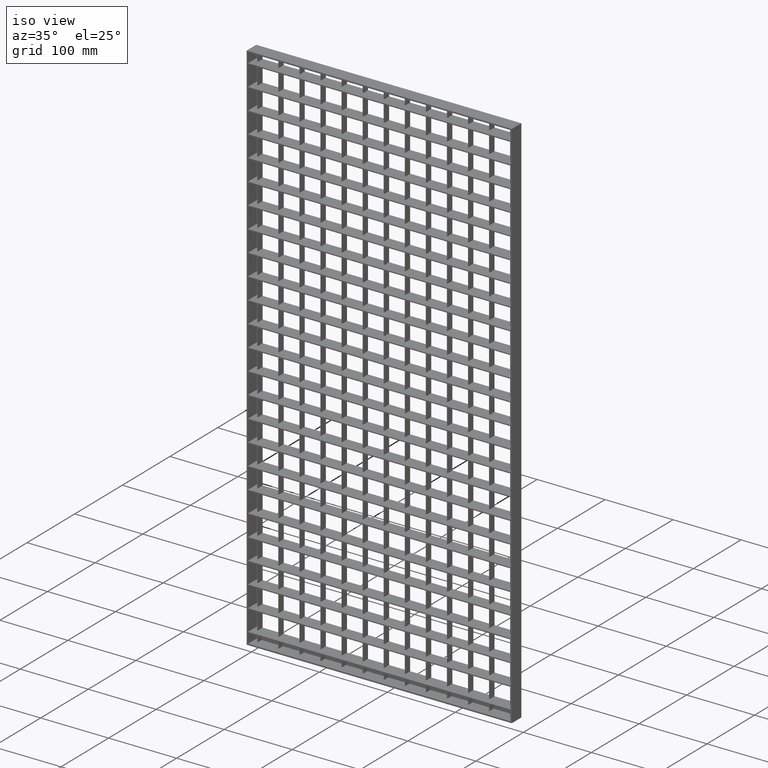
[diagram: clean part render]
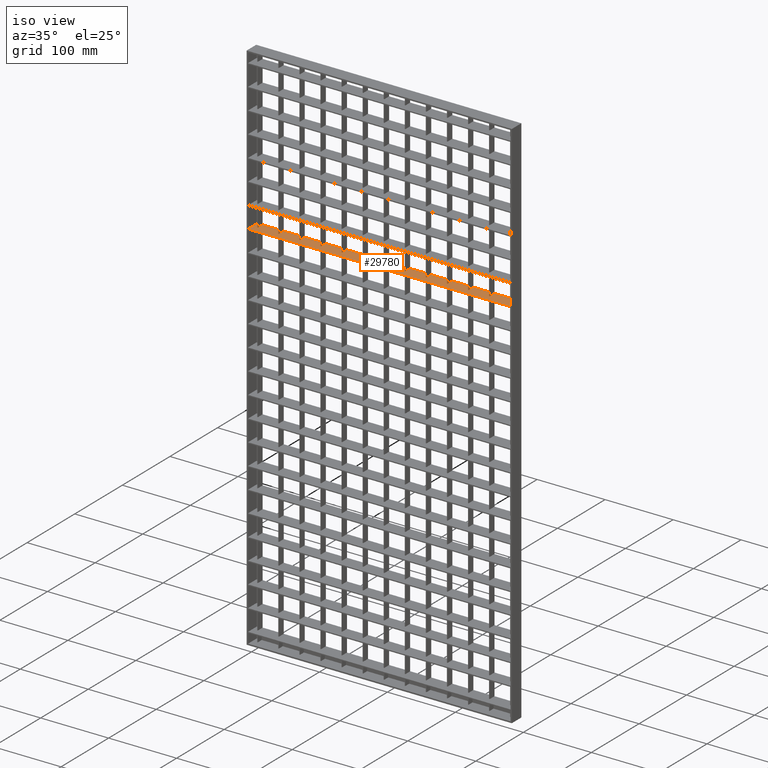
[diagram: same view with one face highlighted and labeled with its STEP entity id]
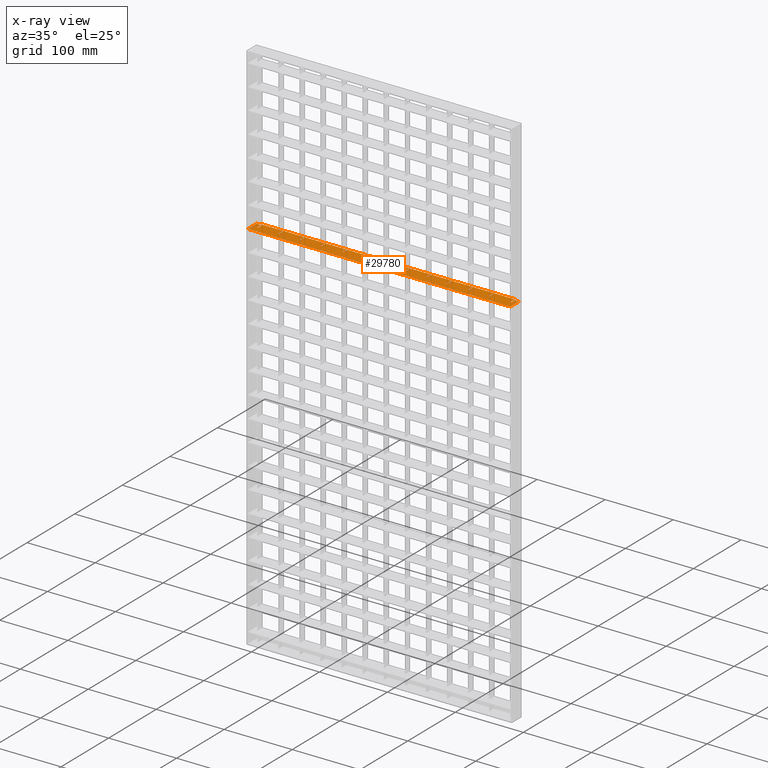
[diagram: x-ray of the same camera — body ghosted, the highlighted face saturated]
A machine part, iso view. The second image highlights one B-rep face of the part: STEP entity #29780.
The next image is the same camera in x-ray: the body ghosted, the highlighted face saturated — about 0% of this face is hidden behind the body in this view.
In plain terms, the highlighted planar face has unit normal (0, 0, 1).
Its self-contained STEP definition (entity closure, byte-faithful):
#153 = DIRECTION ( 'NONE',  ( 0.0000000000000000000, -1.000000000000000000, 0.0000000000000000000 ) ) ;
#383 = CARTESIAN_POINT ( 'NONE',  ( 408.0561711201315200, 10.00000000000012300, -236.7500000000002000 ) ) ;
#587 = LINE ( 'NONE', #14597, #41610 ) ;
#644 = VERTEX_POINT ( 'NONE', #10750 ) ;
#678 = LINE ( 'NONE', #29268, #5679 ) ;
#764 = CARTESIAN_POINT ( 'NONE',  ( 71.50000000000001400, 0.0000000000000000000, -236.7500000000002000 ) ) ;
#894 = PLANE ( 'NONE',  #15846 ) ;
#984 = LINE ( 'NONE', #51073, #9701 ) ;
#1024 = EDGE_CURVE ( 'NONE', #16260, #9839, #40531, .T. ) ;
#1094 = CARTESIAN_POINT ( 'NONE',  ( 133.5000000000000600, 10.00000000000004100, -236.7500000000002000 ) ) ;
#1233 = DIRECTION ( 'NONE',  ( 1.000000000000000000, 3.061616997868380700E-016, -0.0000000000000000000 ) ) ;
#1324 = CARTESIAN_POINT ( 'NONE',  ( 2.000000000000003600, 8.000000000000001800, -236.7500000000002300 ) ) ;
#1342 = VECTOR ( 'NONE', #42900, 1000.000000000000000 ) ;
#1387 = LINE ( 'NONE', #1899, #15063 ) ;
#1445 = EDGE_CURVE ( 'NONE', #45460, #2955, #1387, .T. ) ;
#1455 = VERTEX_POINT ( 'NONE', #29679 ) ;
#1702 = EDGE_CURVE ( 'NONE', #38486, #7622, #36097, .T. ) ;
#1705 = EDGE_CURVE ( 'NONE', #27461, #32814, #37329, .T. ) ;
#1881 = CARTESIAN_POINT ( 'NONE',  ( 408.0561711201315200, 10.00000000000012300, -236.7500000000002000 ) ) ;
#1896 = CARTESIAN_POINT ( 'NONE',  ( 319.5000000000001100, -9.999999999999877400, -236.7500000000002000 ) ) ;
#1899 = CARTESIAN_POINT ( 'NONE',  ( 132.5000000000000000, -9.999999999999877400, -236.7500000000002000 ) ) ;
#1995 = VERTEX_POINT ( 'NONE', #4050 ) ;
#2007 = ORIENTED_EDGE ( 'NONE', *, *, #5759, .F. ) ;
#2117 = VERTEX_POINT ( 'NONE', #16589 ) ;
#2120 = VERTEX_POINT ( 'NONE', #17108 ) ;
#2223 = CARTESIAN_POINT ( 'NONE',  ( 287.5000000000001100, -9.999999999999877400, -236.7500000000002000 ) ) ;
#2271 = EDGE_CURVE ( 'NONE', #26367, #24595, #46044, .T. ) ;
#2289 = VECTOR ( 'NONE', #47605, 1000.000000000000000 ) ;
#2398 = DIRECTION ( 'NONE',  ( -0.0000000000000000000, 1.000000000000000000, 0.0000000000000000000 ) ) ;
#2441 = LINE ( 'NONE', #22507, #9953 ) ;
#2645 = DIRECTION ( 'NONE',  ( -0.0000000000000000000, -1.000000000000000000, 0.0000000000000000000 ) ) ;
#2789 = EDGE_CURVE ( 'NONE', #32002, #39252, #5623, .T. ) ;
#2798 = DIRECTION ( 'NONE',  ( -0.0000000000000000000, 1.000000000000000000, 0.0000000000000000000 ) ) ;
#2816 = DIRECTION ( 'NONE',  ( -0.0000000000000000000, 1.000000000000000000, 0.0000000000000000000 ) ) ;
#2955 = VERTEX_POINT ( 'NONE', #13091 ) ;
#3120 = VECTOR ( 'NONE', #153, 1000.000000000000000 ) ;
#3135 = EDGE_CURVE ( 'NONE', #7062, #1995, #14317, .T. ) ;
#3136 = DIRECTION ( 'NONE',  ( 0.0000000000000000000, -1.000000000000000000, 0.0000000000000000000 ) ) ;
#3150 = VECTOR ( 'NONE', #14009, 1000.000000000000000 ) ;
#3152 = CARTESIAN_POINT ( 'NONE',  ( 225.5000000000001400, -9.999999999999877400, -236.7500000000002000 ) ) ;
#3263 = CARTESIAN_POINT ( 'NONE',  ( 8.500000000000007100, 8.365702838930992200E-016, -236.7500000000002000 ) ) ;
#3326 = VECTOR ( 'NONE', #1233, 1000.000000000000000 ) ;
#3390 = VECTOR ( 'NONE', #26713, 1000.000000000000000 ) ;
#3552 = DIRECTION ( 'NONE',  ( -0.0000000000000000000, 1.000000000000000000, 0.0000000000000000000 ) ) ;
#3612 = EDGE_CURVE ( 'NONE', #4499, #22836, #40922, .T. ) ;
#3810 = CARTESIAN_POINT ( 'NONE',  ( 39.49999999999997900, 1.653965597401023900E-015, -236.7500000000002000 ) ) ;
#3934 = VERTEX_POINT ( 'NONE', #41701 ) ;
#4001 = ORIENTED_EDGE ( 'NONE', *, *, #45790, .T. ) ;
#4015 = DIRECTION ( 'NONE',  ( -0.0000000000000000000, 1.000000000000000000, 0.0000000000000000000 ) ) ;
#4050 = CARTESIAN_POINT ( 'NONE',  ( 194.5000000000000000, 2.271495212987144100E-015, -236.7500000000002000 ) ) ;
#4059 = CARTESIAN_POINT ( 'NONE',  ( 164.5000000000000000, 10.00000000000004800, -236.7500000000002000 ) ) ;
#4177 = EDGE_CURVE ( 'NONE', #25424, #2120, #45857, .T. ) ;
#4185 = ORIENTED_EDGE ( 'NONE', *, *, #31992, .T. ) ;
#4235 = ORIENTED_EDGE ( 'NONE', *, *, #13561, .F. ) ;
#4347 = CARTESIAN_POINT ( 'NONE',  ( 102.4999999999999900, -9.999999999999877400, -236.7500000000002000 ) ) ;
#4382 = EDGE_CURVE ( 'NONE', #50762, #32002, #28387, .T. ) ;
#4499 = VERTEX_POINT ( 'NONE', #45133 ) ;
#4624 = VECTOR ( 'NONE', #21027, 1000.000000000000000 ) ;
#4646 = ORIENTED_EDGE ( 'NONE', *, *, #10388, .F. ) ;
#4854 = CARTESIAN_POINT ( 'NONE',  ( 225.5000000000001400, 10.00000000000006800, -236.7500000000002000 ) ) ;
#4873 = DIRECTION ( 'NONE',  ( -1.000000000000000000, -3.061616997868383100E-016, 0.0000000000000000000 ) ) ;
#4891 = ORIENTED_EDGE ( 'NONE', *, *, #39717, .T. ) ;
#5533 = CARTESIAN_POINT ( 'NONE',  ( 163.5000000000000000, -9.999999999999877400, -236.7500000000002000 ) ) ;
#5623 = LINE ( 'NONE', #3152, #6876 ) ;
#5634 = CARTESIAN_POINT ( 'NONE',  ( 40.50000000000003600, 10.00000000000001100, -236.7500000000002000 ) ) ;
#5679 = VECTOR ( 'NONE', #21338, 1000.000000000000000 ) ;
#5759 = EDGE_CURVE ( 'NONE', #23967, #33287, #25197, .T. ) ;
#5898 = VECTOR ( 'NONE', #9505, 1000.000000000000000 ) ;
#5924 = DIRECTION ( 'NONE',  ( 0.0000000000000000000, -1.000000000000000000, 0.0000000000000000000 ) ) ;
#5997 = EDGE_CURVE ( 'NONE', #44871, #7948, #50012, .T. ) ;
#6093 = VERTEX_POINT ( 'NONE', #11440 ) ;
#6096 = CARTESIAN_POINT ( 'NONE',  ( 226.5000000000001400, 7.001226303889211900E-016, -236.7500000000002300 ) ) ;
#6131 = CARTESIAN_POINT ( 'NONE',  ( 226.5000000000001400, -9.999999999999877400, -236.7500000000002000 ) ) ;
#6325 = CARTESIAN_POINT ( 'NONE',  ( 350.5000000000001700, 7.001226303889211900E-016, -236.7500000000002300 ) ) ;
#6464 = VERTEX_POINT ( 'NONE', #45252 ) ;
#6559 = ORIENTED_EDGE ( 'NONE', *, *, #26084, .F. ) ;
#6620 = EDGE_CURVE ( 'NONE', #33287, #1455, #48050, .T. ) ;
#6697 = ORIENTED_EDGE ( 'NONE', *, *, #34419, .T. ) ;
#6698 = VERTEX_POINT ( 'NONE', #43934 ) ;
#6764 = EDGE_CURVE ( 'NONE', #7062, #24434, #30049, .T. ) ;
#6876 = VECTOR ( 'NONE', #2816, 1000.000000000000000 ) ;
#6916 = EDGE_CURVE ( 'NONE', #23101, #41106, #41822, .T. ) ;
#7062 = VERTEX_POINT ( 'NONE', #30367 ) ;
#7196 = VECTOR ( 'NONE', #33804, 1000.000000000000000 ) ;
#7207 = ORIENTED_EDGE ( 'NONE', *, *, #9274, .T. ) ;
#7297 = CARTESIAN_POINT ( 'NONE',  ( 408.0561711201315200, 10.00000000000012300, -236.7500000000002000 ) ) ;
#7377 = VECTOR ( 'NONE', #51251, 1000.000000000000000 ) ;
#7422 = EDGE_CURVE ( 'NONE', #18587, #16260, #8835, .T. ) ;
#7563 = CARTESIAN_POINT ( 'NONE',  ( 382.0000000000002800, 10.00000000000000400, -236.7500000000004500 ) ) ;
#7590 = VERTEX_POINT ( 'NONE', #35074 ) ;
#7593 = EDGE_CURVE ( 'NONE', #39877, #43399, #22542, .T. ) ;
#7622 = VERTEX_POINT ( 'NONE', #3810 ) ;
#7631 = VECTOR ( 'NONE', #29333, 1000.000000000000000 ) ;
#7796 = DIRECTION ( 'NONE',  ( -0.0000000000000000000, 1.000000000000000000, 0.0000000000000000000 ) ) ;
#7852 = CARTESIAN_POINT ( 'NONE',  ( 408.0561711201315200, -1.561251128379126400E-014, -236.7500000000002000 ) ) ;
#7872 = EDGE_CURVE ( 'NONE', #48052, #27461, #41037, .T. ) ;
#7885 = VECTOR ( 'NONE', #2798, 1000.000000000000000 ) ;
#7897 = DIRECTION ( 'NONE',  ( 0.0000000000000000000, -1.000000000000000000, 0.0000000000000000000 ) ) ;
#7911 = CARTESIAN_POINT ( 'NONE',  ( 40.50000000000003600, -9.999999999999877400, -236.7500000000002000 ) ) ;
#7948 = VERTEX_POINT ( 'NONE', #21043 ) ;
#8025 = VERTEX_POINT ( 'NONE', #3263 ) ;
#8050 = EDGE_CURVE ( 'NONE', #22836, #48052, #31733, .T. ) ;
#8181 = EDGE_CURVE ( 'NONE', #32814, #25754, #19299, .T. ) ;
#8488 = VECTOR ( 'NONE', #26277, 1000.000000000000000 ) ;
#8835 = LINE ( 'NONE', #33250, #41770 ) ;
#9098 = CARTESIAN_POINT ( 'NONE',  ( 349.5000000000001700, 1.006284330175759700E-015, -236.7500000000002300 ) ) ;
#9256 = CARTESIAN_POINT ( 'NONE',  ( 408.0561711201315200, -9.999999999999877400, -236.7500000000002000 ) ) ;
#9274 = EDGE_CURVE ( 'NONE', #37556, #44171, #2441, .T. ) ;
#9505 = DIRECTION ( 'NONE',  ( -1.000000000000000000, 0.0000000000000000000, 0.0000000000000000000 ) ) ;
#9619 = VECTOR ( 'NONE', #31197, 1000.000000000000000 ) ;
#9701 = VECTOR ( 'NONE', #11521, 1000.000000000000000 ) ;
#9727 = CARTESIAN_POINT ( 'NONE',  ( 408.0561711201315200, 9.540979117872439000E-014, -236.7500000000002000 ) ) ;
#9758 = ORIENTED_EDGE ( 'NONE', *, *, #45426, .T. ) ;
#9768 = CARTESIAN_POINT ( 'NONE',  ( 8.500000000000007100, -9.999999999999877400, -236.7500000000002000 ) ) ;
#9839 = VERTEX_POINT ( 'NONE', #44578 ) ;
#9928 = CARTESIAN_POINT ( 'NONE',  ( 257.5000000000001100, 10.00000000000000200, -236.7500000000003400 ) ) ;
#9953 = VECTOR ( 'NONE', #49912, 1000.000000000000000 ) ;
#10112 = DIRECTION ( 'NONE',  ( -1.000000000000000000, 0.0000000000000000000, 0.0000000000000000000 ) ) ;
#10267 = CARTESIAN_POINT ( 'NONE',  ( 382.0000000000000600, 8.000000000000001800, -236.7500000000004500 ) ) ;
#10352 = CARTESIAN_POINT ( 'NONE',  ( 2.000000000000003600, -10.00000000000000000, -236.7500000000002300 ) ) ;
#10388 = EDGE_CURVE ( 'NONE', #43137, #23967, #43938, .T. ) ;
#10555 = LINE ( 'NONE', #7911, #40915 ) ;
#10750 = CARTESIAN_POINT ( 'NONE',  ( 287.5000000000001100, 1.006284330175759700E-015, -236.7500000000002300 ) ) ;
#10842 = EDGE_CURVE ( 'NONE', #40280, #30318, #22831, .T. ) ;
#10983 = EDGE_CURVE ( 'NONE', #23101, #22871, #984, .T. ) ;
#11220 = ORIENTED_EDGE ( 'NONE', *, *, #3612, .T. ) ;
#11251 = ORIENTED_EDGE ( 'NONE', *, *, #15636, .T. ) ;
#11301 = ORIENTED_EDGE ( 'NONE', *, *, #8181, .T. ) ;
#11345 = DIRECTION ( 'NONE',  ( -1.000000000000000000, 3.061616997868380700E-016, 0.0000000000000000000 ) ) ;
#11440 = CARTESIAN_POINT ( 'NONE',  ( 256.5000000000001100, 10.00000000000007600, -236.7500000000002000 ) ) ;
#11516 = CARTESIAN_POINT ( 'NONE',  ( 382.0000000000000600, 8.000000000000001800, -236.7500000000002300 ) ) ;
#11521 = DIRECTION ( 'NONE',  ( 0.0000000000000000000, -1.000000000000000000, 0.0000000000000000000 ) ) ;
#11590 = ORIENTED_EDGE ( 'NONE', *, *, #38516, .T. ) ;
#11845 = LINE ( 'NONE', #47780, #3120 ) ;
#11875 = LINE ( 'NONE', #50130, #30466 ) ;
#12211 = LINE ( 'NONE', #22819, #44508 ) ;
#12290 = VECTOR ( 'NONE', #47924, 1000.000000000000000 ) ;
#12385 = VECTOR ( 'NONE', #16217, 1000.000000000000000 ) ;
#12505 = ORIENTED_EDGE ( 'NONE', *, *, #21587, .T. ) ;
#12618 = ORIENTED_EDGE ( 'NONE', *, *, #7422, .T. ) ;
#12631 = CARTESIAN_POINT ( 'NONE',  ( 163.5000000000000000, 1.454099899479207200E-015, -236.7500000000002000 ) ) ;
#12713 = VERTEX_POINT ( 'NONE', #47564 ) ;
#12766 = EDGE_CURVE ( 'NONE', #2955, #26367, #678, .T. ) ;
#12878 = EDGE_CURVE ( 'NONE', #14347, #644, #47300, .T. ) ;
#12879 = LINE ( 'NONE', #9768, #47695 ) ;
#12965 = VECTOR ( 'NONE', #27135, 1000.000000000000000 ) ;
#13091 = CARTESIAN_POINT ( 'NONE',  ( 132.4999999999999400, 6.367045859712454800E-016, -236.7500000000002000 ) ) ;
#13561 = EDGE_CURVE ( 'NONE', #41043, #33529, #587, .T. ) ;
#13624 = LINE ( 'NONE', #10352, #40912 ) ;
#13814 = CARTESIAN_POINT ( 'NONE',  ( 39.50000000000000700, 10.00000000000000200, -236.7500000000002300 ) ) ;
#13884 = VECTOR ( 'NONE', #3136, 1000.000000000000000 ) ;
#14009 = DIRECTION ( 'NONE',  ( 0.0000000000000000000, -1.000000000000000000, 0.0000000000000000000 ) ) ;
#14317 = LINE ( 'NONE', #45887, #34156 ) ;
#14347 = VERTEX_POINT ( 'NONE', #31672 ) ;
#14597 = CARTESIAN_POINT ( 'NONE',  ( 71.50000000000001400, -9.999999999999877400, -236.7500000000002000 ) ) ;
#14838 = ORIENTED_EDGE ( 'NONE', *, *, #1705, .T. ) ;
#15063 = VECTOR ( 'NONE', #38692, 1000.000000000000000 ) ;
#15098 = ORIENTED_EDGE ( 'NONE', *, *, #18117, .F. ) ;
#15189 = LINE ( 'NONE', #18351, #16434 ) ;
#15367 = VECTOR ( 'NONE', #25724, 1000.000000000000000 ) ;
#15446 = DIRECTION ( 'NONE',  ( -0.0000000000000000000, -1.000000000000000000, 0.0000000000000000000 ) ) ;
#15611 = CARTESIAN_POINT ( 'NONE',  ( 225.5000000000001400, 1.006284330175759700E-015, -236.7500000000002300 ) ) ;
#15636 = EDGE_CURVE ( 'NONE', #12713, #50762, #29607, .T. ) ;
#15650 = VECTOR ( 'NONE', #23641, 1000.000000000000000 ) ;
#15662 = ORIENTED_EDGE ( 'NONE', *, *, #12766, .F. ) ;
#15676 = LINE ( 'NONE', #49706, #33678 ) ;
#15838 = LINE ( 'NONE', #18228, #3390 ) ;
#15846 = AXIS2_PLACEMENT_3D ( 'NONE', #9256, #25236, #41152 ) ;
#15881 = LINE ( 'NONE', #25871, #7196 ) ;
#16217 = DIRECTION ( 'NONE',  ( -1.000000000000000000, -3.061616997868383100E-016, 0.0000000000000000000 ) ) ;
#16260 = VERTEX_POINT ( 'NONE', #9928 ) ;
#16434 = VECTOR ( 'NONE', #26157, 1000.000000000000000 ) ;
#16589 = CARTESIAN_POINT ( 'NONE',  ( 9.500000000000008900, 10.00000000000000200, -236.7500000000002000 ) ) ;
#17108 = CARTESIAN_POINT ( 'NONE',  ( 381.5000000000000600, 10.00000000000000200, -236.7500000000003400 ) ) ;
#17304 = LINE ( 'NONE', #50927, #12965 ) ;
#17375 = VERTEX_POINT ( 'NONE', #9098 ) ;
#17811 = EDGE_CURVE ( 'NONE', #21538, #25424, #41556, .T. ) ;
#18117 = EDGE_CURVE ( 'NONE', #23432, #7590, #11875, .T. ) ;
#18228 = CARTESIAN_POINT ( 'NONE',  ( 408.0561711201315200, -4.510281037539698400E-014, -236.7500000000002000 ) ) ;
#18242 = VECTOR ( 'NONE', #27607, 1000.000000000000000 ) ;
#18351 = CARTESIAN_POINT ( 'NONE',  ( 408.0561711201315200, 10.00000000000012300, -236.7500000000002000 ) ) ;
#18402 = DIRECTION ( 'NONE',  ( -1.000000000000000000, -3.061616997868383100E-016, 0.0000000000000000000 ) ) ;
#18405 = DIRECTION ( 'NONE',  ( -0.0000000000000000000, 1.000000000000000000, 0.0000000000000000000 ) ) ;
#18587 = VERTEX_POINT ( 'NONE', #33103 ) ;
#18733 = LINE ( 'NONE', #20091, #31121 ) ;
#18834 = CARTESIAN_POINT ( 'NONE',  ( 164.5000000000000000, 0.0000000000000000000, -236.7500000000002000 ) ) ;
#19299 = LINE ( 'NONE', #51564, #24310 ) ;
#19326 = CARTESIAN_POINT ( 'NONE',  ( 9.500000000000008900, -9.999999999999877400, -236.7500000000002000 ) ) ;
#19602 = EDGE_CURVE ( 'NONE', #25885, #33003, #29648, .T. ) ;
#19692 = EDGE_CURVE ( 'NONE', #28121, #2117, #35203, .T. ) ;
#19697 = ORIENTED_EDGE ( 'NONE', *, *, #8050, .T. ) ;
#19704 = CARTESIAN_POINT ( 'NONE',  ( 101.4999999999999900, -9.999999999999877400, -236.7500000000002000 ) ) ;
#20091 = CARTESIAN_POINT ( 'NONE',  ( 380.5000000000000600, -9.999999999999877400, -236.7500000000002000 ) ) ;
#20113 = ORIENTED_EDGE ( 'NONE', *, *, #43805, .F. ) ;
#20154 = LINE ( 'NONE', #40814, #3326 ) ;
#20328 = CARTESIAN_POINT ( 'NONE',  ( 408.0561711201315200, 10.00000000000012300, -236.7500000000002000 ) ) ;
#20390 = VECTOR ( 'NONE', #35050, 1000.000000000000000 ) ;
#20681 = CARTESIAN_POINT ( 'NONE',  ( 408.0561711201315200, -2.602085213965210600E-014, -236.7500000000002000 ) ) ;
#21027 = DIRECTION ( 'NONE',  ( 1.000000000000000000, 3.061616997868380700E-016, -0.0000000000000000000 ) ) ;
#21043 = CARTESIAN_POINT ( 'NONE',  ( 7.999999999999996400, 10.00000000000000200, -236.7500000000002300 ) ) ;
#21286 = ORIENTED_EDGE ( 'NONE', *, *, #25849, .T. ) ;
#21338 = DIRECTION ( 'NONE',  ( 1.000000000000000000, 3.061616997868380700E-016, -0.0000000000000000000 ) ) ;
#21538 = VERTEX_POINT ( 'NONE', #10267 ) ;
#21587 = EDGE_CURVE ( 'NONE', #6464, #24595, #28860, .T. ) ;
#21609 = EDGE_CURVE ( 'NONE', #9839, #31344, #15838, .T. ) ;
#21688 = ORIENTED_EDGE ( 'NONE', *, *, #21609, .T. ) ;
#21806 = EDGE_CURVE ( 'NONE', #31344, #6093, #30710, .T. ) ;
#22001 = CARTESIAN_POINT ( 'NONE',  ( 288.5000000000001100, 10.00000000000000200, -236.7500000000003400 ) ) ;
#22055 = EDGE_CURVE ( 'NONE', #8025, #28121, #30657, .T. ) ;
#22103 = ORIENTED_EDGE ( 'NONE', *, *, #36378, .F. ) ;
#22240 = VECTOR ( 'NONE', #47289, 1000.000000000000000 ) ;
#22507 = CARTESIAN_POINT ( 'NONE',  ( 408.0561711201315200, -6.938893903907228400E-015, -236.7500000000002000 ) ) ;
#22518 = CARTESIAN_POINT ( 'NONE',  ( 380.5000000000000600, 10.00000000000011500, -236.7500000000002000 ) ) ;
#22542 = LINE ( 'NONE', #47261, #1342 ) ;
#22632 = CARTESIAN_POINT ( 'NONE',  ( 9.500000000000008900, 0.0000000000000000000, -236.7500000000002000 ) ) ;
#22757 = EDGE_CURVE ( 'NONE', #45460, #1455, #34275, .T. ) ;
#22819 = CARTESIAN_POINT ( 'NONE',  ( 408.0561711201315200, 10.00000000000012300, -236.7500000000002000 ) ) ;
#22831 = LINE ( 'NONE', #46922, #7885 ) ;
#22836 = VERTEX_POINT ( 'NONE', #27039 ) ;
#22871 = VERTEX_POINT ( 'NONE', #38995 ) ;
#23101 = VERTEX_POINT ( 'NONE', #48556 ) ;
#23282 = ORIENTED_EDGE ( 'NONE', *, *, #17811, .T. ) ;
#23328 = LINE ( 'NONE', #1324, #5898 ) ;
#23369 = CARTESIAN_POINT ( 'NONE',  ( 350.5000000000001700, 10.00000000000000200, -236.7500000000003400 ) ) ;
#23432 = VERTEX_POINT ( 'NONE', #30968 ) ;
#23530 = ORIENTED_EDGE ( 'NONE', *, *, #2271, .F. ) ;
#23641 = DIRECTION ( 'NONE',  ( 0.0000000000000000000, -1.000000000000000000, 0.0000000000000000000 ) ) ;
#23838 = LINE ( 'NONE', #20328, #36820 ) ;
#23847 = EDGE_CURVE ( 'NONE', #7590, #35185, #15676, .T. ) ;
#23967 = VERTEX_POINT ( 'NONE', #37316 ) ;
#24016 = ORIENTED_EDGE ( 'NONE', *, *, #4177, .T. ) ;
#24310 = VECTOR ( 'NONE', #43537, 1000.000000000000000 ) ;
#24434 = VERTEX_POINT ( 'NONE', #4059 ) ;
#24595 = VERTEX_POINT ( 'NONE', #1094 ) ;
#24859 = DIRECTION ( 'NONE',  ( -1.000000000000000000, 3.061616997868380700E-016, 0.0000000000000000000 ) ) ;
#25038 = CARTESIAN_POINT ( 'NONE',  ( 408.0561711201315200, 10.00000000000012300, -236.7500000000002000 ) ) ;
#25061 = EDGE_CURVE ( 'NONE', #32891, #17375, #41631, .T. ) ;
#25197 = LINE ( 'NONE', #9727, #4624 ) ;
#25236 = DIRECTION ( 'NONE',  ( 0.0000000000000000000, 0.0000000000000000000, 1.000000000000000000 ) ) ;
#25342 = VECTOR ( 'NONE', #7897, 1000.000000000000000 ) ;
#25349 = CARTESIAN_POINT ( 'NONE',  ( 133.5000000000000000, -9.999999999999877400, -236.7500000000002000 ) ) ;
#25389 = CARTESIAN_POINT ( 'NONE',  ( 133.5000000000000000, 0.0000000000000000000, -236.7500000000002000 ) ) ;
#25424 = VERTEX_POINT ( 'NONE', #7563 ) ;
#25717 = CARTESIAN_POINT ( 'NONE',  ( 408.0561711201315200, 10.00000000000012300, -236.7500000000002000 ) ) ;
#25724 = DIRECTION ( 'NONE',  ( -0.0000000000000000000, 1.000000000000000000, 0.0000000000000000000 ) ) ;
#25754 = VERTEX_POINT ( 'NONE', #22001 ) ;
#25849 = EDGE_CURVE ( 'NONE', #6698, #35185, #13624, .T. ) ;
#25854 = ORIENTED_EDGE ( 'NONE', *, *, #33284, .T. ) ;
#25871 = CARTESIAN_POINT ( 'NONE',  ( 288.5000000000001100, -9.999999999999877400, -236.7500000000002000 ) ) ;
#25885 = VERTEX_POINT ( 'NONE', #22518 ) ;
#26030 = DIRECTION ( 'NONE',  ( -1.000000000000000000, -3.061616997868383100E-016, 0.0000000000000000000 ) ) ;
#26084 = EDGE_CURVE ( 'NONE', #43399, #24434, #17304, .T. ) ;
#26149 = VECTOR ( 'NONE', #15446, 1000.000000000000000 ) ;
#26157 = DIRECTION ( 'NONE',  ( -1.000000000000000000, -3.061616997868383100E-016, 0.0000000000000000000 ) ) ;
#26277 = DIRECTION ( 'NONE',  ( 0.0000000000000000000, -1.000000000000000000, 0.0000000000000000000 ) ) ;
#26287 = CARTESIAN_POINT ( 'NONE',  ( 408.0561711201315200, 10.00000000000012300, -236.7500000000002000 ) ) ;
#26367 = VERTEX_POINT ( 'NONE', #25389 ) ;
#26371 = EDGE_CURVE ( 'NONE', #17375, #4499, #33316, .T. ) ;
#26550 = DIRECTION ( 'NONE',  ( -1.000000000000000000, -3.061616997868383100E-016, 0.0000000000000000000 ) ) ;
#26713 = DIRECTION ( 'NONE',  ( -1.000000000000000000, 3.061616997868380700E-016, 0.0000000000000000000 ) ) ;
#26765 = DIRECTION ( 'NONE',  ( -1.000000000000000000, -3.061616997868383100E-016, 0.0000000000000000000 ) ) ;
#27022 = ORIENTED_EDGE ( 'NONE', *, *, #10842, .F. ) ;
#27039 = CARTESIAN_POINT ( 'NONE',  ( 319.5000000000001100, 10.00000000000000200, -236.7500000000003400 ) ) ;
#27068 = LINE ( 'NONE', #2223, #45728 ) ;
#27135 = DIRECTION ( 'NONE',  ( -0.0000000000000000000, 1.000000000000000000, 0.0000000000000000000 ) ) ;
#27174 = ORIENTED_EDGE ( 'NONE', *, *, #22055, .F. ) ;
#27301 = ORIENTED_EDGE ( 'NONE', *, *, #19692, .F. ) ;
#27456 = ORIENTED_EDGE ( 'NONE', *, *, #7872, .T. ) ;
#27461 = VERTEX_POINT ( 'NONE', #48439 ) ;
#27509 = DIRECTION ( 'NONE',  ( 0.0000000000000000000, -1.000000000000000000, 0.0000000000000000000 ) ) ;
#27546 = VERTEX_POINT ( 'NONE', #46768 ) ;
#27607 = DIRECTION ( 'NONE',  ( 1.000000000000000000, 3.061616997868380700E-016, -0.0000000000000000000 ) ) ;
#28121 = VERTEX_POINT ( 'NONE', #22632 ) ;
#28371 = ORIENTED_EDGE ( 'NONE', *, *, #1702, .F. ) ;
#28387 = LINE ( 'NONE', #35908, #12290 ) ;
#28444 = CARTESIAN_POINT ( 'NONE',  ( 381.5000000000000600, 7.001226303889211900E-016, -236.7500000000002300 ) ) ;
#28632 = DIRECTION ( 'NONE',  ( -1.000000000000000000, -3.061616997868383100E-016, 0.0000000000000000000 ) ) ;
#28685 = VECTOR ( 'NONE', #7796, 1000.000000000000000 ) ;
#28860 = LINE ( 'NONE', #34157, #48780 ) ;
#28915 = DIRECTION ( 'NONE',  ( 1.000000000000000000, 3.061616997868380700E-016, -0.0000000000000000000 ) ) ;
#29097 = CARTESIAN_POINT ( 'NONE',  ( 102.4999999999999900, 0.0000000000000000000, -236.7500000000002000 ) ) ;
#29244 = VECTOR ( 'NONE', #24859, 1000.000000000000000 ) ;
#29246 = CARTESIAN_POINT ( 'NONE',  ( 101.5000000000000000, 10.00000000000000200, -236.7500000000002300 ) ) ;
#29268 = CARTESIAN_POINT ( 'NONE',  ( 408.0561711201315200, 8.500145032286354800E-014, -236.7500000000002000 ) ) ;
#29333 = DIRECTION ( 'NONE',  ( -1.000000000000000000, -3.061616997868383100E-016, 0.0000000000000000000 ) ) ;
#29352 = ORIENTED_EDGE ( 'NONE', *, *, #5997, .T. ) ;
#29607 = LINE ( 'NONE', #6131, #8488 ) ;
#29648 = LINE ( 'NONE', #39442, #22240 ) ;
#29679 = CARTESIAN_POINT ( 'NONE',  ( 102.5000000000000300, 10.00000000000003000, -236.7500000000002000 ) ) ;
#29780 = ADVANCED_FACE ( 'NONE', ( #51187 ), #894, .T. ) ;
#30049 = LINE ( 'NONE', #25038, #39945 ) ;
#30315 = ORIENTED_EDGE ( 'NONE', *, *, #23847, .F. ) ;
#30318 = VERTEX_POINT ( 'NONE', #48844 ) ;
#30367 = CARTESIAN_POINT ( 'NONE',  ( 194.5000000000000000, 10.00000000000000200, -236.7500000000002300 ) ) ;
#30466 = VECTOR ( 'NONE', #27509, 1000.000000000000000 ) ;
#30538 = ORIENTED_EDGE ( 'NONE', *, *, #19602, .T. ) ;
#30637 = VECTOR ( 'NONE', #34234, 1000.000000000000000 ) ;
#30657 = LINE ( 'NONE', #44741, #48721 ) ;
#30710 = LINE ( 'NONE', #50847, #9619 ) ;
#30968 = CARTESIAN_POINT ( 'NONE',  ( 388.0000000000000600, 8.000000000000001800, -236.7500000000004500 ) ) ;
#31116 = LINE ( 'NONE', #49442, #3150 ) ;
#31121 = VECTOR ( 'NONE', #31704, 1000.000000000000000 ) ;
#31197 = DIRECTION ( 'NONE',  ( -0.0000000000000000000, 1.000000000000000000, 0.0000000000000000000 ) ) ;
#31344 = VERTEX_POINT ( 'NONE', #47288 ) ;
#31672 = CARTESIAN_POINT ( 'NONE',  ( 288.5000000000001100, 7.001226303889211900E-016, -236.7500000000002300 ) ) ;
#31704 = DIRECTION ( 'NONE',  ( -0.0000000000000000000, 1.000000000000000000, 0.0000000000000000000 ) ) ;
#31733 = LINE ( 'NONE', #1896, #38564 ) ;
#31759 = ORIENTED_EDGE ( 'NONE', *, *, #42591, .F. ) ;
#31992 = EDGE_CURVE ( 'NONE', #7948, #27546, #46618, .T. ) ;
#32002 = VERTEX_POINT ( 'NONE', #15611 ) ;
#32114 = LINE ( 'NONE', #32263, #2289 ) ;
#32120 = VECTOR ( 'NONE', #4015, 1000.000000000000000 ) ;
#32172 = ORIENTED_EDGE ( 'NONE', *, *, #4382, .T. ) ;
#32263 = CARTESIAN_POINT ( 'NONE',  ( 408.0561711201315200, 1.040834085586084300E-013, -236.7500000000002000 ) ) ;
#32814 = VERTEX_POINT ( 'NONE', #41753 ) ;
#32831 = ORIENTED_EDGE ( 'NONE', *, *, #2789, .T. ) ;
#32891 = VERTEX_POINT ( 'NONE', #6325 ) ;
#33003 = VERTEX_POINT ( 'NONE', #23369 ) ;
#33103 = CARTESIAN_POINT ( 'NONE',  ( 287.5000000000001100, 10.00000000000008700, -236.7500000000002000 ) ) ;
#33162 = CARTESIAN_POINT ( 'NONE',  ( 195.0000000000000000, 8.000000000000001800, -236.7500000000002300 ) ) ;
#33250 = CARTESIAN_POINT ( 'NONE',  ( 408.0561711201315200, 10.00000000000012300, -236.7500000000002000 ) ) ;
#33284 = EDGE_CURVE ( 'NONE', #6093, #12713, #15189, .T. ) ;
#33287 = VERTEX_POINT ( 'NONE', #29097 ) ;
#33316 = LINE ( 'NONE', #37482, #15367 ) ;
#33425 = DIRECTION ( 'NONE',  ( -1.000000000000000000, 3.061616997868380700E-016, 0.0000000000000000000 ) ) ;
#33529 = VERTEX_POINT ( 'NONE', #34606 ) ;
#33678 = VECTOR ( 'NONE', #45524, 1000.000000000000000 ) ;
#33804 = DIRECTION ( 'NONE',  ( 0.0000000000000000000, -1.000000000000000000, 0.0000000000000000000 ) ) ;
#33899 = ORIENTED_EDGE ( 'NONE', *, *, #42352, .F. ) ;
#33986 = ORIENTED_EDGE ( 'NONE', *, *, #47980, .T. ) ;
#34156 = VECTOR ( 'NONE', #37852, 1000.000000000000000 ) ;
#34157 = CARTESIAN_POINT ( 'NONE',  ( 408.0561711201315200, 10.00000000000012300, -236.7500000000002000 ) ) ;
#34234 = DIRECTION ( 'NONE',  ( -1.000000000000000000, -3.061616997868383100E-016, 0.0000000000000000000 ) ) ;
#34275 = LINE ( 'NONE', #1881, #46126 ) ;
#34311 = CARTESIAN_POINT ( 'NONE',  ( 408.0561711201315200, 10.00000000000012300, -236.7500000000002000 ) ) ;
#34327 = EDGE_CURVE ( 'NONE', #7622, #3934, #38676, .T. ) ;
#34419 = EDGE_CURVE ( 'NONE', #38486, #2117, #23838, .T. ) ;
#34592 = VECTOR ( 'NONE', #10112, 1000.000000000000000 ) ;
#34606 = CARTESIAN_POINT ( 'NONE',  ( 71.50000000000001400, 10.00000000000002100, -236.7500000000002000 ) ) ;
#34733 = ORIENTED_EDGE ( 'NONE', *, *, #45173, .T. ) ;
#35046 = CARTESIAN_POINT ( 'NONE',  ( 380.5000000000000600, 1.006284330175759700E-015, -236.7500000000002300 ) ) ;
#35050 = DIRECTION ( 'NONE',  ( -1.000000000000000000, -3.061616997868383100E-016, 0.0000000000000000000 ) ) ;
#35074 = CARTESIAN_POINT ( 'NONE',  ( 388.0000000000000600, -10.00000000000000200, -236.7500000000002000 ) ) ;
#35169 = EDGE_CURVE ( 'NONE', #2120, #37556, #31116, .T. ) ;
#35171 = ORIENTED_EDGE ( 'NONE', *, *, #12878, .T. ) ;
#35185 = VERTEX_POINT ( 'NONE', #41937 ) ;
#35203 = LINE ( 'NONE', #19326, #32120 ) ;
#35397 = ORIENTED_EDGE ( 'NONE', *, *, #6620, .F. ) ;
#35908 = CARTESIAN_POINT ( 'NONE',  ( 408.0561711201315200, -5.377642775528102000E-014, -236.7500000000002000 ) ) ;
#36097 = LINE ( 'NONE', #39382, #15650 ) ;
#36378 = EDGE_CURVE ( 'NONE', #3934, #41106, #10555, .T. ) ;
#36538 = ORIENTED_EDGE ( 'NONE', *, *, #1024, .T. ) ;
#36804 = ORIENTED_EDGE ( 'NONE', *, *, #41952, .T. ) ;
#36820 = VECTOR ( 'NONE', #28632, 1000.000000000000000 ) ;
#37042 = LINE ( 'NONE', #5533, #46402 ) ;
#37063 = ORIENTED_EDGE ( 'NONE', *, *, #45382, .T. ) ;
#37185 = EDGE_CURVE ( 'NONE', #44871, #8025, #12879, .T. ) ;
#37274 = DIRECTION ( 'NONE',  ( 0.0000000000000000000, -1.000000000000000000, 0.0000000000000000000 ) ) ;
#37316 = CARTESIAN_POINT ( 'NONE',  ( 101.4999999999999900, 1.554032748440115500E-015, -236.7500000000002000 ) ) ;
#37329 = LINE ( 'NONE', #51394, #28685 ) ;
#37482 = CARTESIAN_POINT ( 'NONE',  ( 349.5000000000001700, -9.999999999999877400, -236.7500000000002000 ) ) ;
#37556 = VERTEX_POINT ( 'NONE', #28444 ) ;
#37676 = LINE ( 'NONE', #33162, #34592 ) ;
#37852 = DIRECTION ( 'NONE',  ( 0.0000000000000000000, -1.000000000000000000, 0.0000000000000000000 ) ) ;
#38023 = ORIENTED_EDGE ( 'NONE', *, *, #35169, .T. ) ;
#38112 = CARTESIAN_POINT ( 'NONE',  ( 408.0561711201315200, -3.469446951953614200E-014, -236.7500000000002000 ) ) ;
#38486 = VERTEX_POINT ( 'NONE', #13814 ) ;
#38516 = EDGE_CURVE ( 'NONE', #39252, #30318, #47453, .T. ) ;
#38564 = VECTOR ( 'NONE', #42552, 1000.000000000000000 ) ;
#38676 = LINE ( 'NONE', #47425, #18242 ) ;
#38692 = DIRECTION ( 'NONE',  ( 0.0000000000000000000, -1.000000000000000000, 0.0000000000000000000 ) ) ;
#38752 = VECTOR ( 'NONE', #26550, 1000.000000000000000 ) ;
#38995 = CARTESIAN_POINT ( 'NONE',  ( 70.50000000000000000, 7.366374349321785200E-016, -236.7500000000002000 ) ) ;
#39181 = ORIENTED_EDGE ( 'NONE', *, *, #3135, .F. ) ;
#39252 = VERTEX_POINT ( 'NONE', #4854 ) ;
#39382 = CARTESIAN_POINT ( 'NONE',  ( 39.50000000000003600, -9.999999999999877400, -236.7500000000002000 ) ) ;
#39405 = ORIENTED_EDGE ( 'NONE', *, *, #21806, .T. ) ;
#39442 = CARTESIAN_POINT ( 'NONE',  ( 408.0561711201315200, 10.00000000000012300, -236.7500000000002000 ) ) ;
#39717 = EDGE_CURVE ( 'NONE', #44171, #25885, #18733, .T. ) ;
#39877 = VERTEX_POINT ( 'NONE', #12631 ) ;
#39883 = CARTESIAN_POINT ( 'NONE',  ( 7.999999999999996400, 8.000000000000001800, -236.7500000000002300 ) ) ;
#39945 = VECTOR ( 'NONE', #4873, 1000.000000000000000 ) ;
#40280 = VERTEX_POINT ( 'NONE', #43447 ) ;
#40531 = LINE ( 'NONE', #49735, #13884 ) ;
#40726 = DIRECTION ( 'NONE',  ( -1.000000000000000000, -3.061616997868383100E-016, 0.0000000000000000000 ) ) ;
#40814 = CARTESIAN_POINT ( 'NONE',  ( 408.0561711201315200, 6.765421556309547700E-014, -236.7500000000002000 ) ) ;
#40912 = VECTOR ( 'NONE', #2645, 1000.000000000000000 ) ;
#40915 = VECTOR ( 'NONE', #3552, 1000.000000000000000 ) ;
#40922 = LINE ( 'NONE', #383, #12385 ) ;
#41037 = LINE ( 'NONE', #20681, #29244 ) ;
#41043 = VERTEX_POINT ( 'NONE', #764 ) ;
#41106 = VERTEX_POINT ( 'NONE', #5634 ) ;
#41152 = DIRECTION ( 'NONE',  ( 1.000000000000000000, 0.0000000000000000000, -0.0000000000000000000 ) ) ;
#41409 = ORIENTED_EDGE ( 'NONE', *, *, #10983, .F. ) ;
#41556 = LINE ( 'NONE', #11516, #7377 ) ;
#41610 = VECTOR ( 'NONE', #18405, 1000.000000000000000 ) ;
#41631 = LINE ( 'NONE', #7852, #51570 ) ;
#41701 = CARTESIAN_POINT ( 'NONE',  ( 40.50000000000003600, 0.0000000000000000000, -236.7500000000002000 ) ) ;
#41753 = CARTESIAN_POINT ( 'NONE',  ( 318.5000000000001100, 10.00000000000009600, -236.7500000000002000 ) ) ;
#41770 = VECTOR ( 'NONE', #40726, 1000.000000000000000 ) ;
#41822 = LINE ( 'NONE', #25717, #7631 ) ;
#41828 = CARTESIAN_POINT ( 'NONE',  ( 132.5000000000000000, 10.00000000000000200, -236.7500000000002300 ) ) ;
#41937 = CARTESIAN_POINT ( 'NONE',  ( 2.000000000000001800, -10.00000000000000200, -236.7500000000002000 ) ) ;
#41952 = EDGE_CURVE ( 'NONE', #23432, #21538, #37676, .T. ) ;
#42317 = VECTOR ( 'NONE', #33425, 1000.000000000000000 ) ;
#42352 = EDGE_CURVE ( 'NONE', #22871, #41043, #32114, .T. ) ;
#42552 = DIRECTION ( 'NONE',  ( 0.0000000000000000000, -1.000000000000000000, 0.0000000000000000000 ) ) ;
#42591 = EDGE_CURVE ( 'NONE', #6464, #39877, #37042, .T. ) ;
#42900 = DIRECTION ( 'NONE',  ( 1.000000000000000000, 3.061616997868380700E-016, -0.0000000000000000000 ) ) ;
#43137 = VERTEX_POINT ( 'NONE', #29246 ) ;
#43259 = ORIENTED_EDGE ( 'NONE', *, *, #6916, .T. ) ;
#43399 = VERTEX_POINT ( 'NONE', #18834 ) ;
#43447 = CARTESIAN_POINT ( 'NONE',  ( 195.5000000000000000, 0.0000000000000000000, -236.7500000000002000 ) ) ;
#43537 = DIRECTION ( 'NONE',  ( -1.000000000000000000, -3.061616997868383100E-016, 0.0000000000000000000 ) ) ;
#43805 = EDGE_CURVE ( 'NONE', #1995, #40280, #20154, .T. ) ;
#43934 = CARTESIAN_POINT ( 'NONE',  ( 2.000000000000003600, 8.000000000000001800, -236.7500000000002300 ) ) ;
#43938 = LINE ( 'NONE', #19704, #25342 ) ;
#44171 = VERTEX_POINT ( 'NONE', #35046 ) ;
#44371 = ORIENTED_EDGE ( 'NONE', *, *, #37185, .F. ) ;
#44389 = CARTESIAN_POINT ( 'NONE',  ( 8.500000000000007100, 10.00000000000000200, -236.7500000000002300 ) ) ;
#44508 = VECTOR ( 'NONE', #26765, 1000.000000000000000 ) ;
#44578 = CARTESIAN_POINT ( 'NONE',  ( 257.5000000000001100, 7.001226303889211900E-016, -236.7500000000002300 ) ) ;
#44741 = CARTESIAN_POINT ( 'NONE',  ( 408.0561711201315200, 1.231653667943533000E-013, -236.7500000000002000 ) ) ;
#44871 = VERTEX_POINT ( 'NONE', #44389 ) ;
#45133 = CARTESIAN_POINT ( 'NONE',  ( 349.5000000000001700, 10.00000000000010700, -236.7500000000002000 ) ) ;
#45134 = DIRECTION ( 'NONE',  ( -0.0000000000000000000, 1.000000000000000000, 0.0000000000000000000 ) ) ;
#45173 = EDGE_CURVE ( 'NONE', #43137, #33529, #12211, .T. ) ;
#45252 = CARTESIAN_POINT ( 'NONE',  ( 163.5000000000000000, 10.00000000000000200, -236.7500000000002300 ) ) ;
#45382 = EDGE_CURVE ( 'NONE', #644, #18587, #27068, .T. ) ;
#45426 = EDGE_CURVE ( 'NONE', #25754, #14347, #15881, .T. ) ;
#45460 = VERTEX_POINT ( 'NONE', #41828 ) ;
#45524 = DIRECTION ( 'NONE',  ( -1.000000000000000000, -3.061616997868383100E-016, 0.0000000000000000000 ) ) ;
#45728 = VECTOR ( 'NONE', #2398, 1000.000000000000000 ) ;
#45790 = EDGE_CURVE ( 'NONE', #27546, #6698, #23328, .T. ) ;
#45857 = LINE ( 'NONE', #7297, #20390 ) ;
#45887 = CARTESIAN_POINT ( 'NONE',  ( 194.5000000000000000, -9.999999999999877400, -236.7500000000002000 ) ) ;
#46044 = LINE ( 'NONE', #25349, #46632 ) ;
#46126 = VECTOR ( 'NONE', #26030, 1000.000000000000000 ) ;
#46183 = ORIENTED_EDGE ( 'NONE', *, *, #26371, .T. ) ;
#46226 = EDGE_LOOP ( 'NONE', ( #24016, #38023, #7207, #4891, #30538, #33986, #48079, #46183, #11220, #19697, #27456, #14838, #11301, #9758, #35171, #37063, #12618, #36538, #21688, #39405, #25854, #11251, #32172, #32831, #11590, #27022, #20113, #39181, #51032, #6559, #47857, #31759, #12505, #23530, #15662, #50250, #49845, #35397, #2007, #4646, #34733, #4235, #33899, #41409, #43259, #22103, #48339, #28371, #6697, #27301, #27174, #44371, #29352, #4185, #4001, #21286, #30315, #15098, #36804, #23282 ) ) ;
#46402 = VECTOR ( 'NONE', #37274, 1000.000000000000000 ) ;
#46618 = LINE ( 'NONE', #39883, #26149 ) ;
#46632 = VECTOR ( 'NONE', #45134, 1000.000000000000000 ) ;
#46768 = CARTESIAN_POINT ( 'NONE',  ( 7.999999999999996400, 8.000000000000001800, -236.7500000000002300 ) ) ;
#46922 = CARTESIAN_POINT ( 'NONE',  ( 195.5000000000000000, -9.999999999999877400, -236.7500000000002000 ) ) ;
#47261 = CARTESIAN_POINT ( 'NONE',  ( 408.0561711201315200, 7.632783294297951200E-014, -236.7500000000002000 ) ) ;
#47288 = CARTESIAN_POINT ( 'NONE',  ( 256.5000000000001100, 1.006284330175759700E-015, -236.7500000000002300 ) ) ;
#47289 = DIRECTION ( 'NONE',  ( -1.000000000000000000, -3.061616997868383100E-016, 0.0000000000000000000 ) ) ;
#47300 = LINE ( 'NONE', #38112, #42317 ) ;
#47425 = CARTESIAN_POINT ( 'NONE',  ( 408.0561711201315200, 1.144917494144692700E-013, -236.7500000000002000 ) ) ;
#47453 = LINE ( 'NONE', #26287, #30637 ) ;
#47564 = CARTESIAN_POINT ( 'NONE',  ( 226.5000000000001400, 10.00000000000000200, -236.7500000000002300 ) ) ;
#47605 = DIRECTION ( 'NONE',  ( 1.000000000000000000, 3.061616997868380700E-016, -0.0000000000000000000 ) ) ;
#47695 = VECTOR ( 'NONE', #5924, 1000.000000000000000 ) ;
#47780 = CARTESIAN_POINT ( 'NONE',  ( 350.5000000000001700, -9.999999999999877400, -236.7500000000002000 ) ) ;
#47798 = DIRECTION ( 'NONE',  ( -0.0000000000000000000, 1.000000000000000000, 0.0000000000000000000 ) ) ;
#47857 = ORIENTED_EDGE ( 'NONE', *, *, #7593, .F. ) ;
#47924 = DIRECTION ( 'NONE',  ( -1.000000000000000000, 3.061616997868380700E-016, 0.0000000000000000000 ) ) ;
#47980 = EDGE_CURVE ( 'NONE', #33003, #32891, #11845, .T. ) ;
#48050 = LINE ( 'NONE', #4347, #48707 ) ;
#48052 = VERTEX_POINT ( 'NONE', #48109 ) ;
#48079 = ORIENTED_EDGE ( 'NONE', *, *, #25061, .T. ) ;
#48109 = CARTESIAN_POINT ( 'NONE',  ( 319.5000000000001100, 7.001226303889211900E-016, -236.7500000000002300 ) ) ;
#48339 = ORIENTED_EDGE ( 'NONE', *, *, #34327, .F. ) ;
#48439 = CARTESIAN_POINT ( 'NONE',  ( 318.5000000000001100, 1.006284330175759700E-015, -236.7500000000002300 ) ) ;
#48556 = CARTESIAN_POINT ( 'NONE',  ( 70.50000000000000000, 10.00000000000000200, -236.7500000000002300 ) ) ;
#48707 = VECTOR ( 'NONE', #47798, 1000.000000000000000 ) ;
#48721 = VECTOR ( 'NONE', #28915, 1000.000000000000000 ) ;
#48780 = VECTOR ( 'NONE', #18402, 1000.000000000000000 ) ;
#48844 = CARTESIAN_POINT ( 'NONE',  ( 195.5000000000000000, 10.00000000000005700, -236.7500000000002000 ) ) ;
#49442 = CARTESIAN_POINT ( 'NONE',  ( 381.5000000000000600, -9.999999999999877400, -236.7500000000002000 ) ) ;
#49706 = CARTESIAN_POINT ( 'NONE',  ( 408.0561711201315200, -9.999999999999877400, -236.7500000000002000 ) ) ;
#49735 = CARTESIAN_POINT ( 'NONE',  ( 257.5000000000001700, -9.999999999999877400, -236.7500000000002000 ) ) ;
#49845 = ORIENTED_EDGE ( 'NONE', *, *, #22757, .T. ) ;
#49912 = DIRECTION ( 'NONE',  ( -1.000000000000000000, 3.061616997868380700E-016, 0.0000000000000000000 ) ) ;
#50012 = LINE ( 'NONE', #34311, #38752 ) ;
#50130 = CARTESIAN_POINT ( 'NONE',  ( 388.0000000000000600, -9.999999999999877400, -236.7500000000002000 ) ) ;
#50250 = ORIENTED_EDGE ( 'NONE', *, *, #1445, .F. ) ;
#50762 = VERTEX_POINT ( 'NONE', #6096 ) ;
#50847 = CARTESIAN_POINT ( 'NONE',  ( 256.5000000000001700, -9.999999999999877400, -236.7500000000002000 ) ) ;
#50927 = CARTESIAN_POINT ( 'NONE',  ( 164.5000000000000000, -9.999999999999877400, -236.7500000000002000 ) ) ;
#51032 = ORIENTED_EDGE ( 'NONE', *, *, #6764, .T. ) ;
#51073 = CARTESIAN_POINT ( 'NONE',  ( 70.50000000000000000, -9.999999999999877400, -236.7500000000002000 ) ) ;
#51187 = FACE_OUTER_BOUND ( 'NONE', #46226, .T. ) ;
#51251 = DIRECTION ( 'NONE',  ( 0.0000000000000000000, 1.000000000000000000, -0.0000000000000000000 ) ) ;
#51394 = CARTESIAN_POINT ( 'NONE',  ( 318.5000000000001100, -9.999999999999877400, -236.7500000000002000 ) ) ;
#51564 = CARTESIAN_POINT ( 'NONE',  ( 408.0561711201315200, 10.00000000000012300, -236.7500000000002000 ) ) ;
#51570 = VECTOR ( 'NONE', #11345, 1000.000000000000000 ) ;